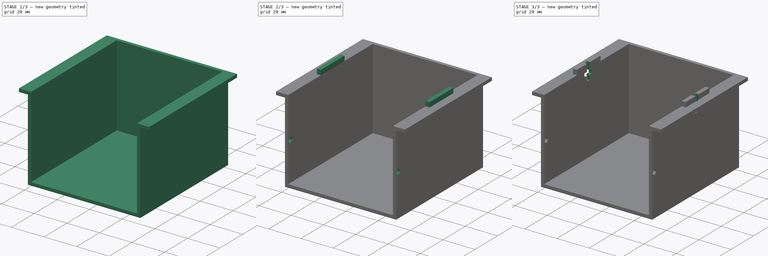
[diagram: build sequence overview — one tinted view per stage of 3, left to right]
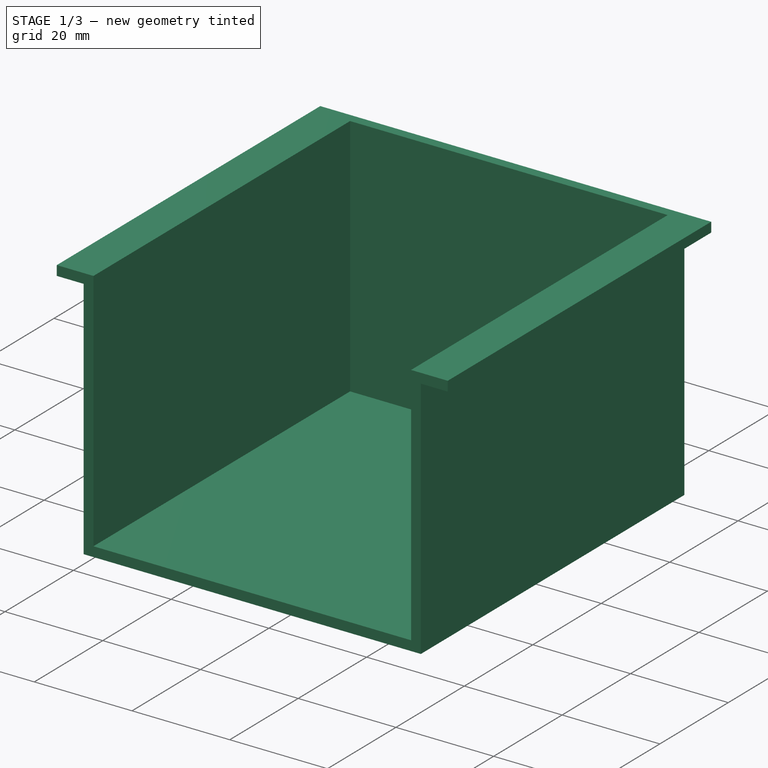
[diagram: stage 1 of 3 — iso view after this stage's code; geometry added in this stage tinted green]
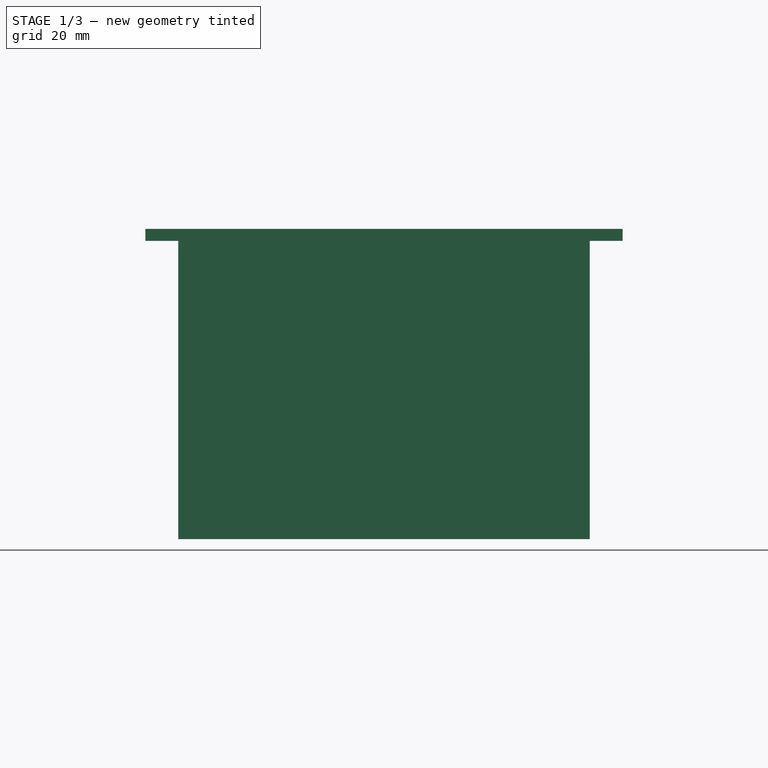
[diagram: stage 1 of 3 — front view after this stage's code; geometry added in this stage tinted green]
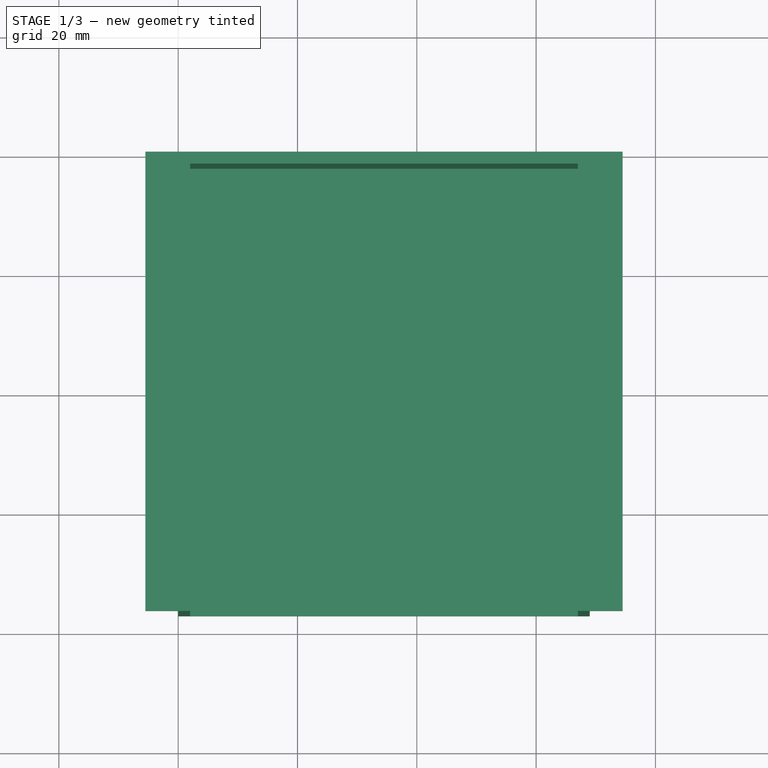
[diagram: stage 1 of 3 — top view after this stage's code; geometry added in this stage tinted green]
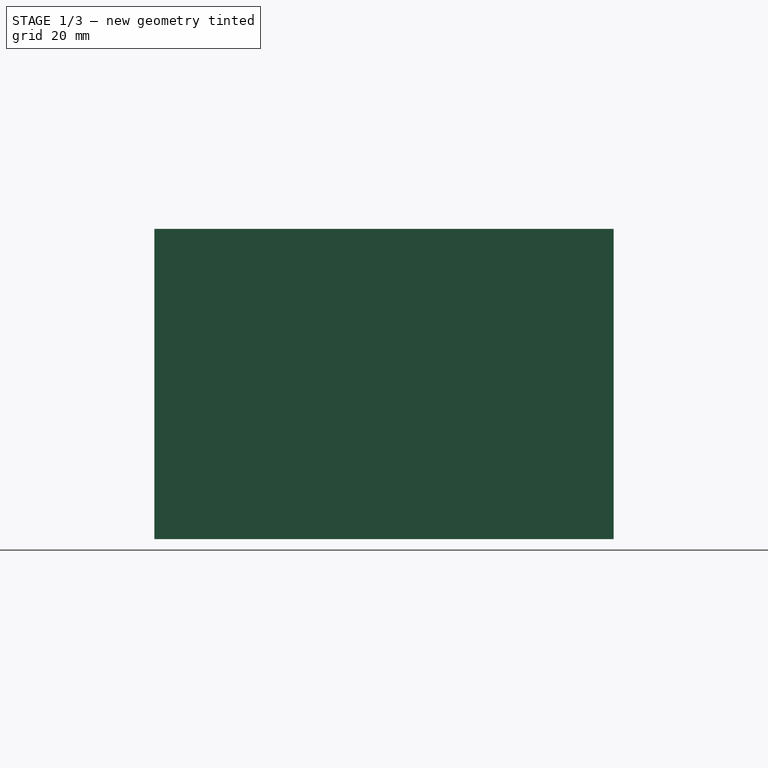
[diagram: stage 1 of 3 — right view after this stage's code; geometry added in this stage tinted green]
FCSTD DOCUMENT  (FreeCAD 1.0R39285 (Git))
Label: BatHolder
License: All rights reserved
LicenseURL: https://en.wikipedia.org/wiki/All_rights_reserved
objects: Sketcher::SketchObject×6, PartDesign::Pad×3, PartDesign::Pocket×3, PartDesign::Body×1
note: 31 computed .brp shape members not serialized (recipe doc carries the construction recipe); baked Part::Feature solids carry a one-line shape summary decoded from their .brp

FEATURE [Sketcher::SketchObject] Sketch  label="SideSketch"
  ArcFitTolerance = 1e-06
  AttachmentSupport = -> [XZ_Plane]
  FullyConstrained = true
  MakeInternals = false
  MapMode = 5
  Placement = pos=(0,0,0) rot=(1,0,0;1.5708rad)
  sketch-geometry (12):
    g0: LineSegment StartX=0 StartY=0 StartZ=0 EndX=69 EndY=0 EndZ=0
    g1: LineSegment StartX=69 StartY=0 StartZ=0 EndX=69 EndY=50 EndZ=0
    g2: LineSegment StartX=69 StartY=50 StartZ=0 EndX=74.5 EndY=50 EndZ=0
    g3: LineSegment StartX=74.5 StartY=50 StartZ=0 EndX=74.5 EndY=52 EndZ=0
    g4: LineSegment StartX=74.5 StartY=52 StartZ=0 EndX=67 EndY=52 EndZ=0
    g5: LineSegment StartX=67 StartY=52 StartZ=0 EndX=67 EndY=2 EndZ=0
    g6: LineSegment StartX=67 StartY=2 StartZ=0 EndX=2 EndY=2 EndZ=0
    g7: LineSegment StartX=2 StartY=2 StartZ=0 EndX=2 EndY=52 EndZ=0
    g8: LineSegment StartX=2 StartY=52 StartZ=0 EndX=-5.5 EndY=52 EndZ=0
    g9: LineSegment StartX=-5.5 StartY=52 StartZ=0 EndX=-5.5 EndY=50 EndZ=0
    g10: LineSegment StartX=-5.5 StartY=50 StartZ=0 EndX=0 EndY=50 EndZ=0
    g11: LineSegment StartX=0 StartY=50 StartZ=0 EndX=0 EndY=0 EndZ=0
  constraints (35):
    c: PointOnObject(g0,g-1)
    c: Coincident(g0,g1)
    c: Vertical(g1)
    c: Coincident(g1,g2)
    c: Horizontal(g2)
    c: Coincident(g2,g3)
    c: Vertical(g3)
    c: Coincident(g3,g4)
    c: Horizontal(g4)
    c: Coincident(g4,g5)
    c: Vertical(g5)
    c: Coincident(g5,g6)
    c: Horizontal(g6)
    c: Coincident(g6,g7)
    c: Vertical(g7)
    c: Coincident(g7,g8)
    c: Horizontal(g8)
    c: Coincident(g8,g9)
    c: Vertical(g9)
    c: Coincident(g9,g10)
    c: PointOnObject(g10,g-2)
    c: Horizontal(g10)
    c: Coincident(g10,g11)
    c: Coincident(g11,g0)
    c: DistanceX(g6,g6) = 65
    c: DistanceX(g0,g6) = 2
    c: DistanceX(g5,g0) = 2
    c: DistanceY(g0,g6) = 2
    c: Coincident(g-1,g0)
    c: DistanceY(g7,g7) = 50
    c: Horizontal(g7,g4)
    c: DistanceY(g9,g9) = 2
    c: Horizontal(g10,g1)
    c: Equal(g10,g2)
    c: DistanceX(g8,g3) = 80
FEATURE [PartDesign::Pad] Pad  label="SidePad"
  Direction = (0,-1,2e-16)
  Length = 77
  Length2 = 10
  Placement = pos=(0,0,0) rot=(1,0,0;1.5708rad)
  Profile = -> Sketch
  ReferenceAxis = -> Sketch [N_Axis]
  Refine = true
  Suppressed = false
  Type = 0
FEATURE [Sketcher::SketchObject] Sketch001  label="BackSketch"
  ArcFitTolerance = 1e-06
  AttachmentSupport = -> [XZ_Plane]
  FullyConstrained = true
  MakeInternals = false
  MapMode = 5
  Placement = pos=(0,0,0) rot=(1,0,0;1.5708rad)
  sketch-geometry (4):
    g0: LineSegment StartX=0 StartY=0 StartZ=0 EndX=69 EndY=0 EndZ=0
    g1: LineSegment StartX=69 StartY=0 StartZ=0 EndX=69 EndY=52 EndZ=0
    g2: LineSegment StartX=69 StartY=52 StartZ=0 EndX=0 EndY=52 EndZ=0
    g3: LineSegment StartX=0 StartY=52 StartZ=0 EndX=0 EndY=0 EndZ=0
  constraints (11):
    c: Coincident(g0,g1)
    c: Coincident(g1,g2)
    c: Coincident(g2,g3)
    c: Coincident(g3,g0)
    c: Horizontal(g0)
    c: Horizontal(g2)
    c: Vertical(g1)
    c: Vertical(g3)
    c: Coincident(g0,g-1)
    c: DistanceX(g2,g2) = 69
    c: DistanceY(g3,g3) = 52
FEATURE [PartDesign::Pad] Pad001  label="BackPad"
  BaseFeature = -> Pad
  Direction = (0,-1,2e-16)
  Length = 2
  Length2 = 10
  Placement = pos=(0,0,0) rot=(1,0,0;1.5708rad)
  Profile = -> Sketch001
  ReferenceAxis = -> Sketch001 [N_Axis]
  Refine = true
  Suppressed = false
  Type = 0
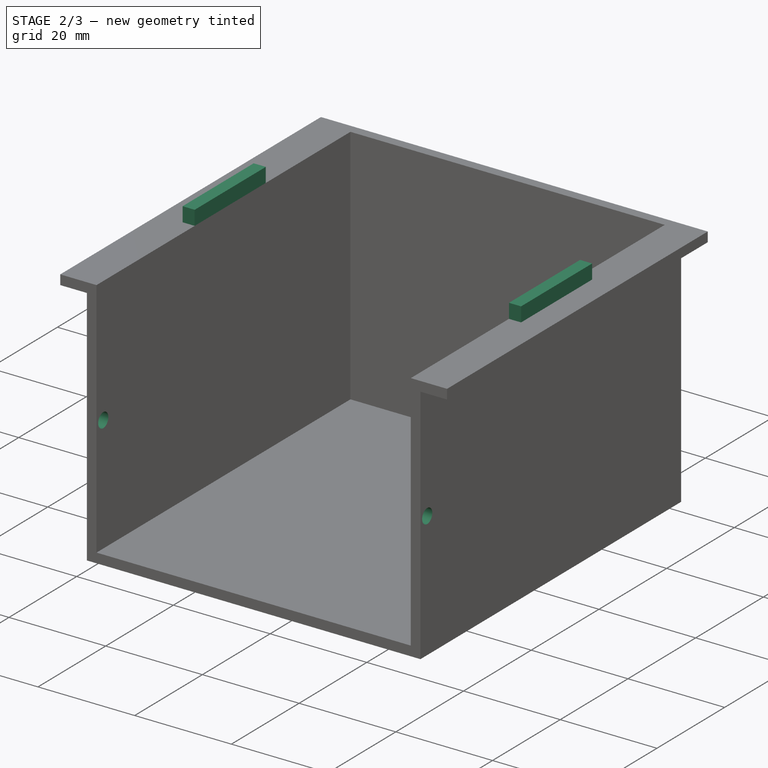
[diagram: stage 2 of 3 — iso view after this stage's code; geometry added in this stage tinted green]
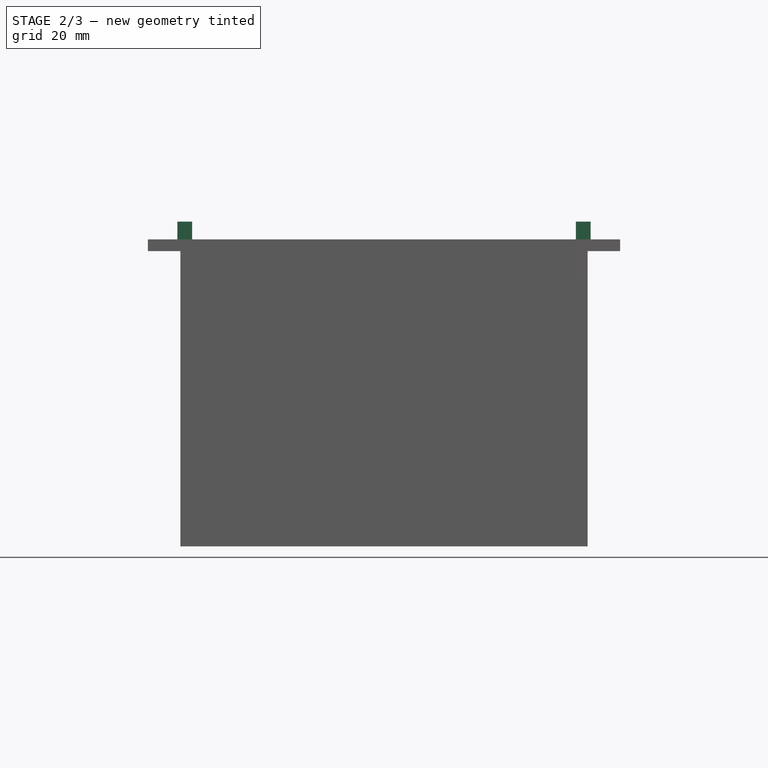
[diagram: stage 2 of 3 — front view after this stage's code; geometry added in this stage tinted green]
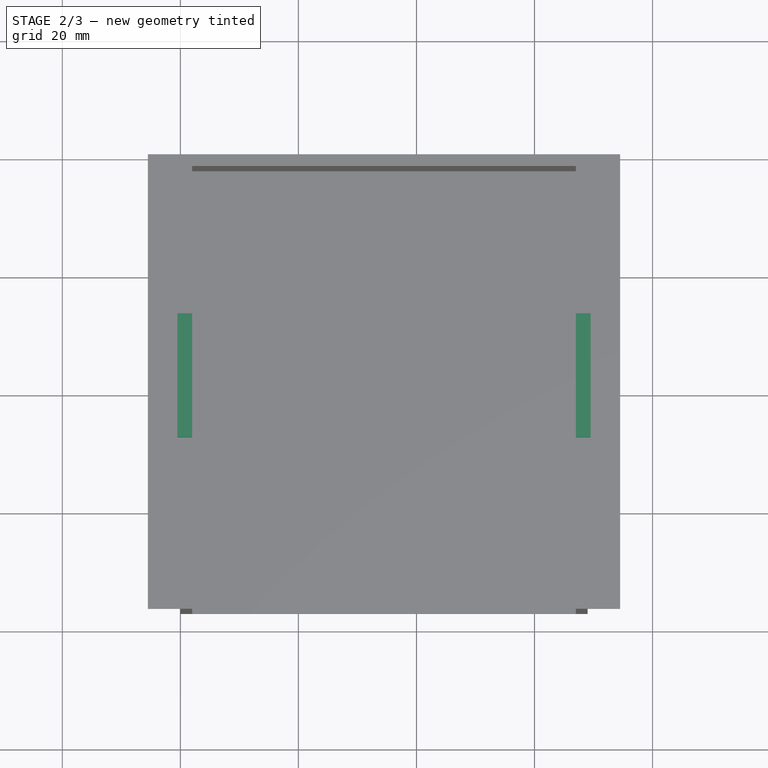
[diagram: stage 2 of 3 — top view after this stage's code; geometry added in this stage tinted green]
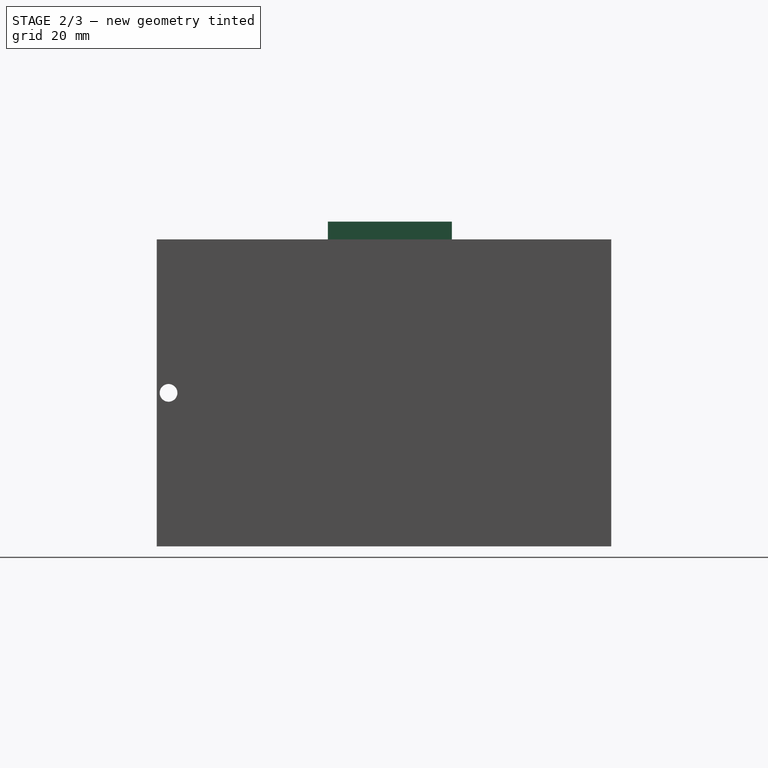
[diagram: stage 2 of 3 — right view after this stage's code; geometry added in this stage tinted green]
FEATURE [Sketcher::SketchObject] Sketch002  label="FixPinSketch"
  ArcFitTolerance = 1e-06
  AttachmentSupport = -> [YZ_Plane]
  FullyConstrained = true
  MakeInternals = false
  MapMode = 5
  Placement = pos=(0,0,0) rot=(0.57735,0.57735,0.57735;2.0944rad)
  sketch-geometry (1):
    g0: Circle CenterX=-75 CenterY=26 CenterZ=0 NormalX=0 NormalY=0 NormalZ=1 AngleXU=0 Radius=1.5
  constraints (3):
    c: Diameter(g0) = 3
    c: DistanceX(g0,g-1) = 75
    c: DistanceY(g-1,g0) = 26
FEATURE [PartDesign::Pocket] Pocket  label="FixPinPocket"
  BaseFeature = -> Pad001
  Direction = (-1,0,0)
  Length = 5
  Length2 = 5
  Midplane = true
  Placement = pos=(0,0,0) rot=(1,0,0;1.5708rad)
  Profile = -> Sketch002
  ReferenceAxis = -> Sketch002 [N_Axis]
  Refine = true
  Suppressed = false
  Type = 1
FEATURE [Sketcher::SketchObject] Sketch003  label="RibSketch"
  ArcFitTolerance = 1e-06
  AttachmentSupport = -> [Pocket]
  FullyConstrained = true
  MakeInternals = false
  MapMode = 5
  Placement = pos=(0,2.86e-14,52) rot=(0,0,1;3.14159rad)
  sketch-geometry (8):
    g0: LineSegment StartX=-69.5 StartY=48 StartZ=0 EndX=-69.5 EndY=27 EndZ=0
    g1: LineSegment StartX=-69.5 StartY=27 StartZ=0 EndX=-67 EndY=27 EndZ=0
    g2: LineSegment StartX=-67 StartY=27 StartZ=0 EndX=-67 EndY=48 EndZ=0
    g3: LineSegment StartX=-67 StartY=48 StartZ=0 EndX=-69.5 EndY=48 EndZ=0
    g4: LineSegment StartX=0.5 StartY=48 StartZ=0 EndX=-2 EndY=48 EndZ=0
    g5: LineSegment StartX=-2 StartY=48 StartZ=0 EndX=-2 EndY=27 EndZ=0
    g6: LineSegment StartX=-2 StartY=27 StartZ=0 EndX=0.5 EndY=27 EndZ=0
    g7: LineSegment StartX=0.5 StartY=27 StartZ=0 EndX=0.5 EndY=48 EndZ=0
  constraints (24):
    c: Coincident(g0,g1)
    c: Coincident(g1,g2)
    c: Coincident(g2,g3)
    c: Coincident(g3,g0)
    c: Vertical(g0)
    c: Vertical(g2)
    c: Horizontal(g1)
    c: Horizontal(g3)
    c: Coincident(g4,g5)
    c: Coincident(g5,g6)
    c: Coincident(g6,g7)
    c: Coincident(g7,g4)
    c: Horizontal(g4)
    c: Horizontal(g6)
    c: Vertical(g5)
    c: Vertical(g7)
    c: Horizontal(g2,g4)
    c: Horizontal(g1,g5)
    c: Equal(g3,g4)
    c: DistanceY(g0,g0) = 21
    c: DistanceY(g-1,g0) = 27
    c: DistanceX(g1,g5) = 65
    c: DistanceX(g3,g3) = 2.5
    c: DistanceX(g5,g-1) = 2
FEATURE [PartDesign::Pad] Pad002  label="RibPad"
  BaseFeature = -> Pocket
  Direction = (0,0,1)
  Length = 3
  Length2 = 10
  Placement = pos=(0,0,0) rot=(1,0,0;1.5708rad)
  Profile = -> Sketch003
  ReferenceAxis = -> Sketch003 [N_Axis]
  Refine = true
  Suppressed = false
  Type = 0
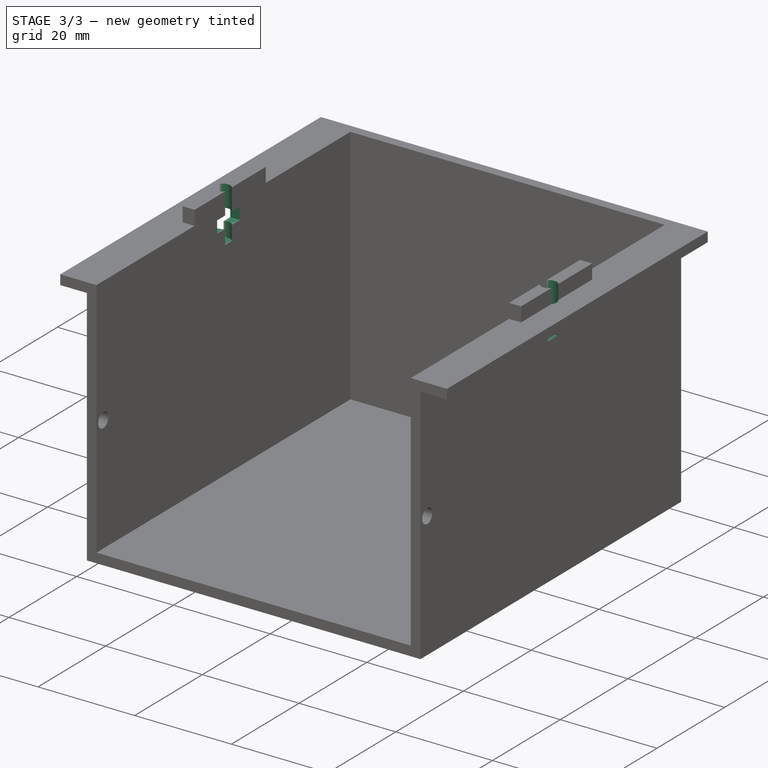
[diagram: stage 3 of 3 — iso view after this stage's code; geometry added in this stage tinted green]
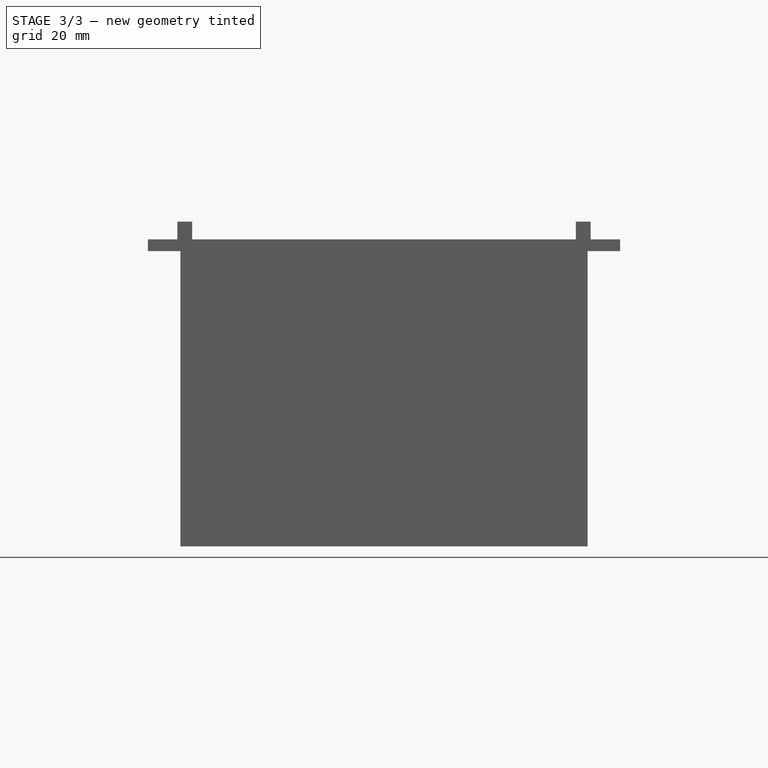
[diagram: stage 3 of 3 — front view after this stage's code; geometry added in this stage tinted green]
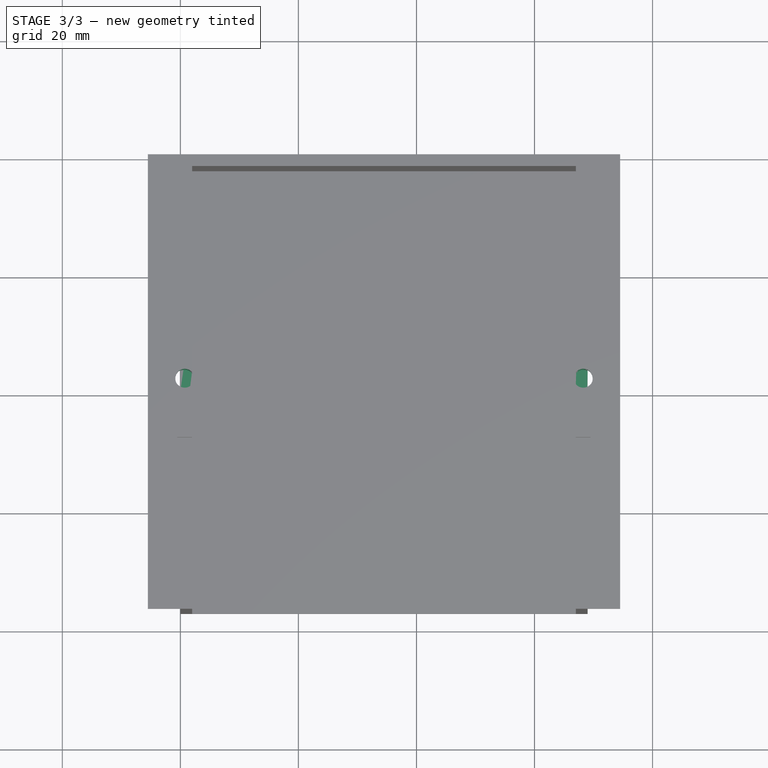
[diagram: stage 3 of 3 — top view after this stage's code; geometry added in this stage tinted green]
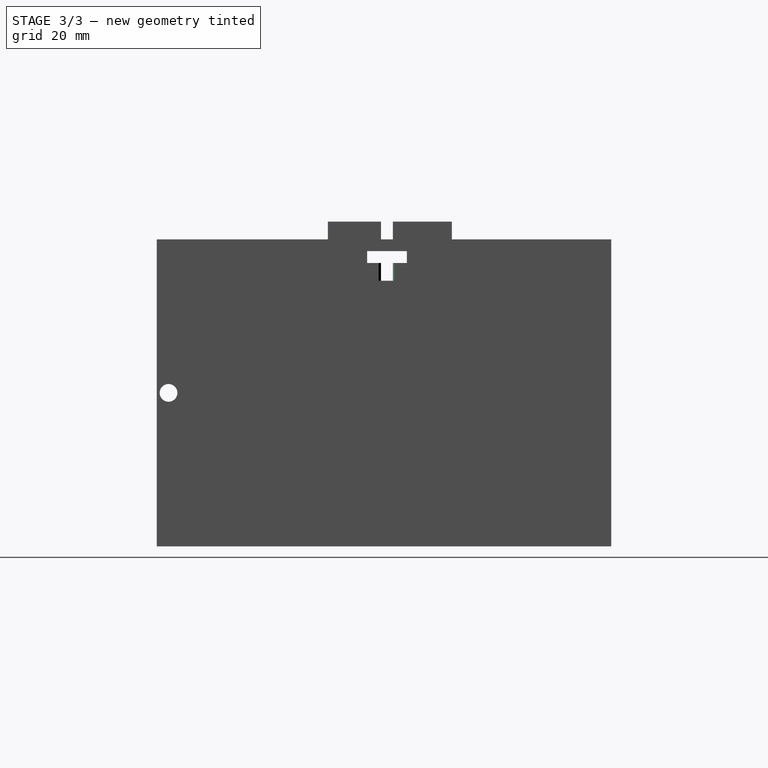
[diagram: stage 3 of 3 — right view after this stage's code; geometry added in this stage tinted green]
FEATURE [Sketcher::SketchObject] Sketch004  label="BoltSketch"
  ArcFitTolerance = 1e-06
  AttachmentSupport = -> [Pad002]
  FullyConstrained = true
  MakeInternals = false
  MapMode = 5
  Placement = pos=(0,0,55) rot=(0,0,1;3.14159rad)
  sketch-geometry (2):
    g0: Circle CenterX=-68.25 CenterY=38 CenterZ=0 NormalX=0 NormalY=0 NormalZ=1 AngleXU=0 Radius=1.6
    g1: Circle CenterX=-0.75 CenterY=38 CenterZ=0 NormalX=0 NormalY=0 NormalZ=1 AngleXU=0 Radius=1.6
  constraints (6):
    c: Diameter(g0) = 3.2
    c: Equal(g0,g1)
    c: Horizontal(g1,g0)
    c: DistanceX(g1,g-1) = 0.75
    c: DistanceY(g-1,g1) = 38
    c: DistanceX(g0,g1) = 67.5
FEATURE [PartDesign::Pocket] Pocket001  label="BoltPocket"
  BaseFeature = -> Pad002
  Direction = (0,0,-1)
  Length = 10
  Length2 = 5
  Placement = pos=(0,0,0) rot=(1,0,0;1.5708rad)
  Profile = -> Sketch004
  ReferenceAxis = -> Sketch004 [N_Axis]
  Refine = true
  Suppressed = false
  Type = 0
FEATURE [Sketcher::SketchObject] Sketch005  label="NutSketch"
  ArcFitTolerance = 1e-06
  AttachmentOffset = pos=(0,0,-1.5) rot=(0,0,1;0rad)
  AttachmentSupport = -> [Pocket001]
  FullyConstrained = true
  MakeInternals = false
  MapMode = 5
  Placement = pos=(0,2.86e-14,50.5) rot=(0,0,1;3.14159rad)
  sketch-geometry (14):
    g0: LineSegment StartX=1.195 StartY=34.6312 StartZ=0 EndX=3.14 EndY=38 EndZ=0
    g1: LineSegment StartX=3.14 StartY=38 StartZ=0 EndX=1.195 EndY=41.3688 EndZ=0
    g2: LineSegment StartX=1.195 StartY=41.3688 StartZ=0 EndX=-2.695 EndY=41.3688 EndZ=0
    g3: LineSegment StartX=-2.695 StartY=41.3688 StartZ=0 EndX=-4.64 EndY=38 EndZ=0
    g4: LineSegment StartX=-4.64 StartY=38 StartZ=0 EndX=-2.695 EndY=34.6312 EndZ=0
    g5: LineSegment StartX=-2.695 StartY=34.6312 StartZ=0 EndX=1.195 EndY=34.6312 EndZ=0
    g6: Circle [constr] CenterX=-0.75 CenterY=38 CenterZ=0 NormalX=0 NormalY=0 NormalZ=1 AngleXU=0 Radius=3.89
    g7: LineSegment StartX=-66.305 StartY=34.6312 StartZ=0 EndX=-64.36 EndY=38 EndZ=0
    g8: LineSegment StartX=-64.36 StartY=38 StartZ=0 EndX=-66.305 EndY=41.3688 EndZ=0
    g9: LineSegment StartX=-66.305 StartY=41.3688 StartZ=0 EndX=-70.195 EndY=41.3688 EndZ=0
    g10: LineSegment StartX=-70.195 StartY=41.3688 StartZ=0 EndX=-72.14 EndY=38 EndZ=0
    g11: LineSegment StartX=-72.14 StartY=38 StartZ=0 EndX=-70.195 EndY=34.6312 EndZ=0
    g12: LineSegment StartX=-70.195 StartY=34.6312 StartZ=0 EndX=-66.305 EndY=34.6312 EndZ=0
    g13: Circle [constr] CenterX=-68.25 CenterY=38 CenterZ=0 NormalX=0 NormalY=0 NormalZ=1 AngleXU=0 Radius=3.89
  constraints (34):
    c: Coincident(g0,g1)
    c: Coincident(g1,g2)
    c: Coincident(g2,g3)
    c: Coincident(g3,g4)
    c: Coincident(g4,g5)
    c: Coincident(g5,g0)
    c: Equal(g0, g1-g5) x5
    c: PointOnObject(g0,g6)
    c: PointOnObject(g1,g6)
    c: PointOnObject(g2,g6)
    c: PointOnObject(g3,g6)
    c: PointOnObject(g4,g6)
    c: PointOnObject(g5,g6)
    c: Horizontal(g2)
    c: DistanceX(g6,g-1) = 0.75
    c: DistanceY(g-1,g6) = 38
    c: Distance(g4,g4) = 3.89
    c: Coincident(g7,g8)
    c: Coincident(g8,g9)
    c: Coincident(g9,g10)
    c: Coincident(g10,g11)
    c: Coincident(g11,g12)
    c: Coincident(g12,g7)
    c: Equal(g7, g8-g12) x5
    c: PointOnObject(g7,g13)
    c: PointOnObject(g8,g13)
    c: PointOnObject(g9,g13)
    c: PointOnObject(g10,g13)
    c: PointOnObject(g11,g13)
    c: PointOnObject(g12,g13)
    c: Horizontal(g9)
    c: Equal(g4,g11)
    c: Horizontal(g13,g6)
    c: DistanceX(g13,g6) = 67.5
FEATURE [PartDesign::Pocket] Pocket002  label="NutPocket"
  BaseFeature = -> Pocket001
  Direction = (0,0,-1)
  Length = 2.5
  Length2 = 5
  Placement = pos=(0,0,0) rot=(1,0,0;1.5708rad)
  Profile = -> Sketch005
  ReferenceAxis = -> Sketch005 [N_Axis]
  Refine = true
  Suppressed = false
  Type = 0
FEATURE [PartDesign::Body] Body
  AllowCompound = false
  Group = -> [Sketch,Pad,Sketch001,Pad001,Sketch002,Pocket,Sketch003,Pad002,Sketch004,Pocket001,Sketch005,Pocket002]
  Origin = -> Origin
  Tip = -> Pocket002
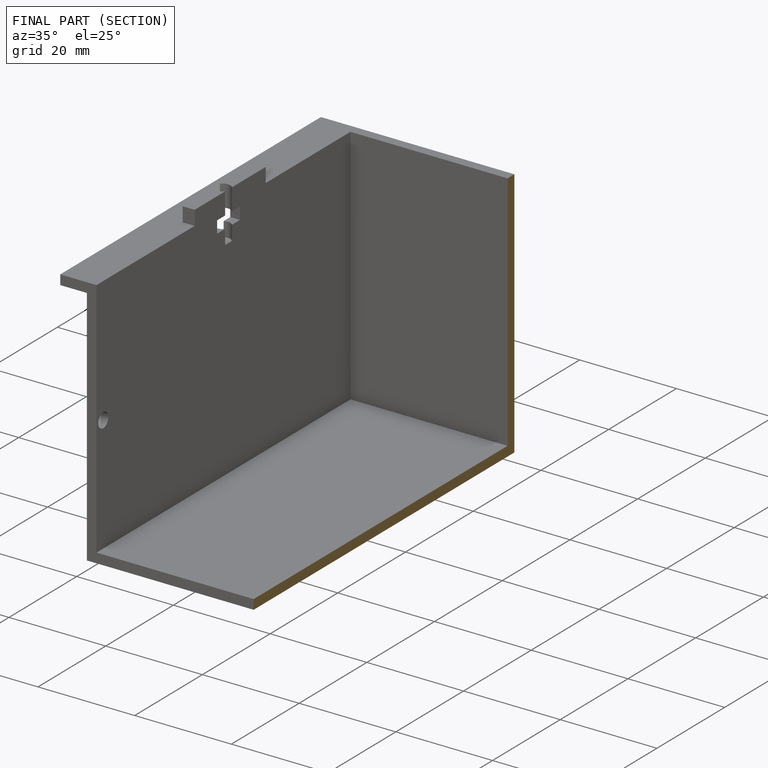
[diagram: finished part — half-section view (interior)]
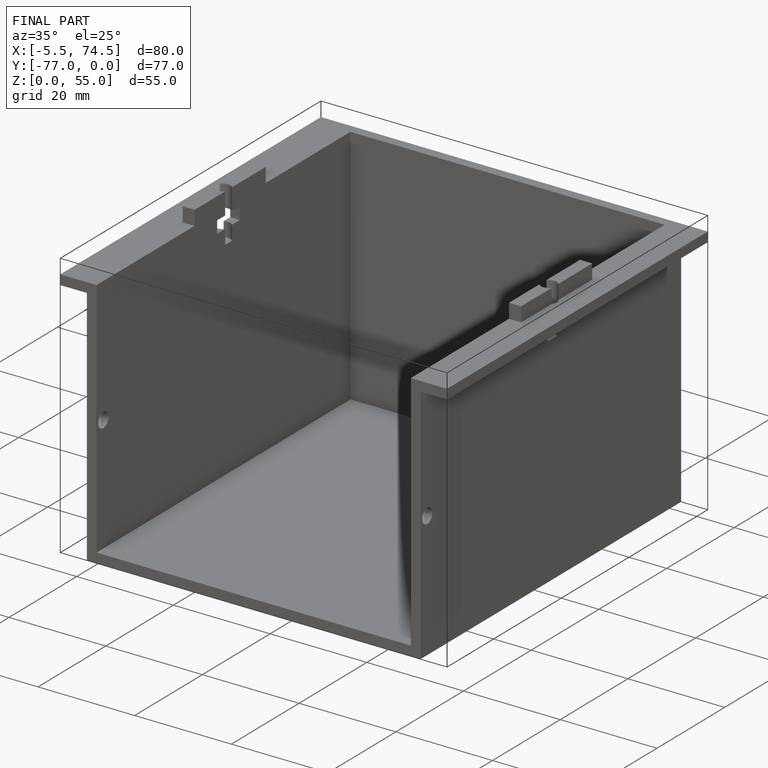
[diagram: finished part — iso view with bounding-box wireframe]
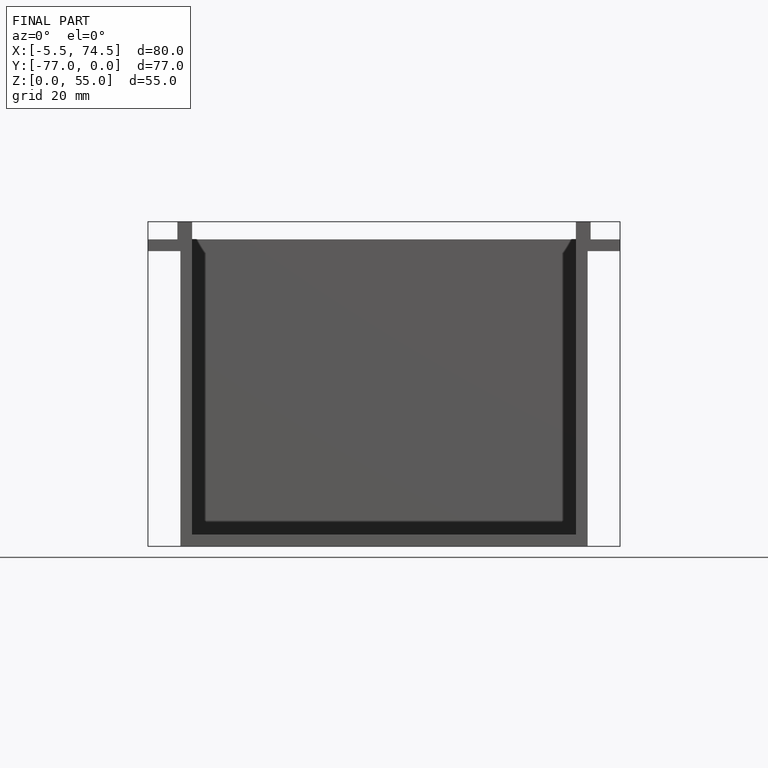
[diagram: finished part — front view with bounding-box wireframe]
